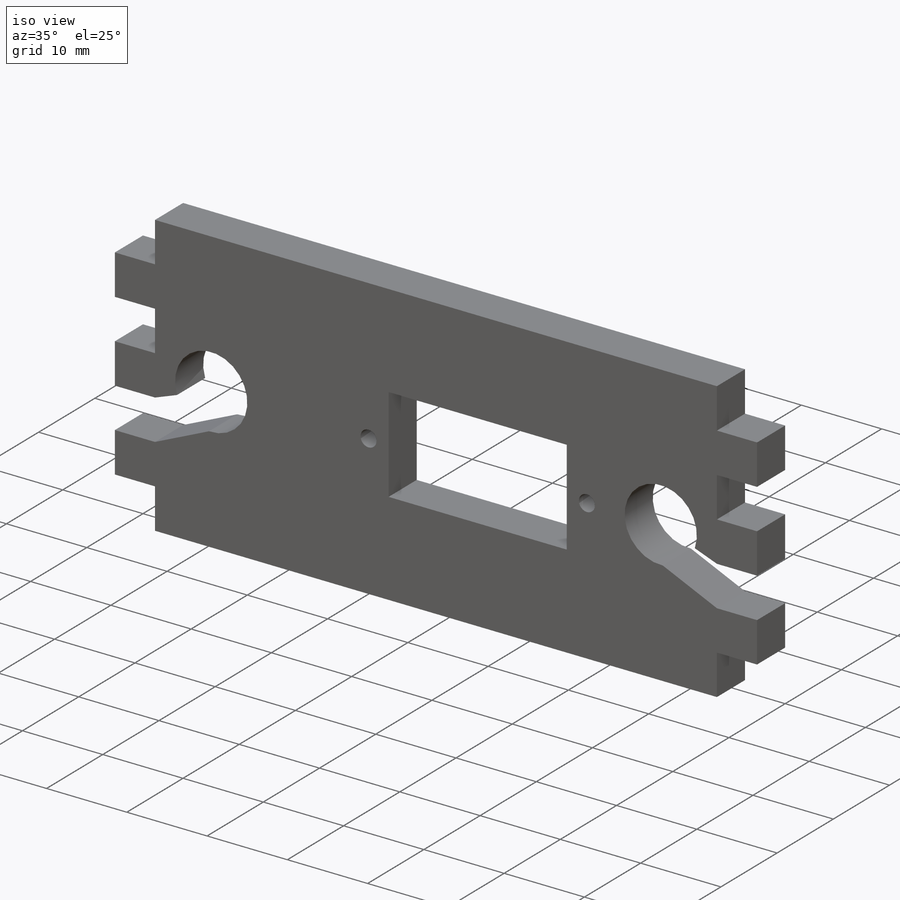
[diagram: iso view]
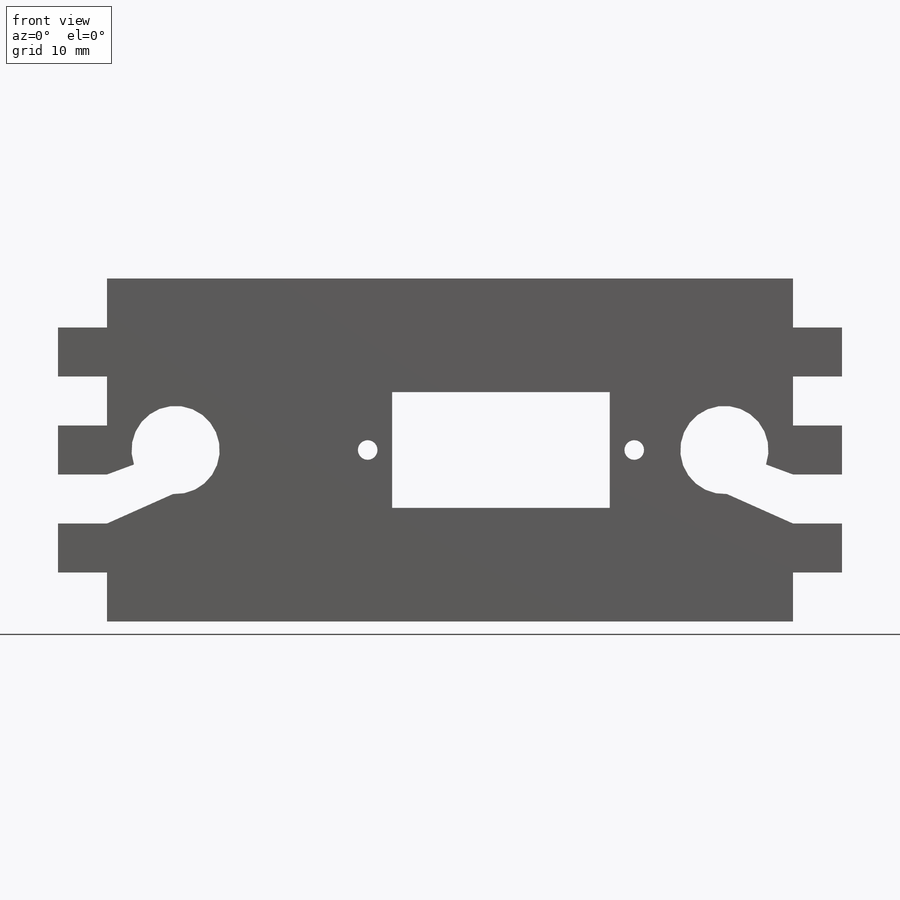
[diagram: front view]
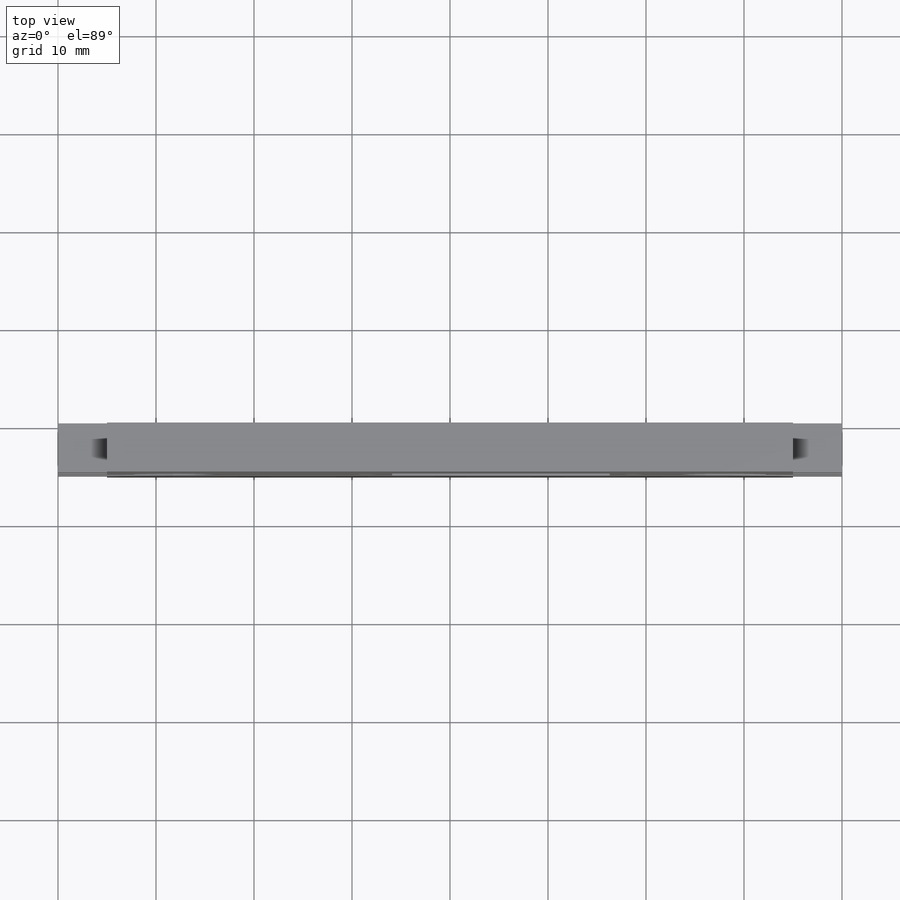
[diagram: top view]
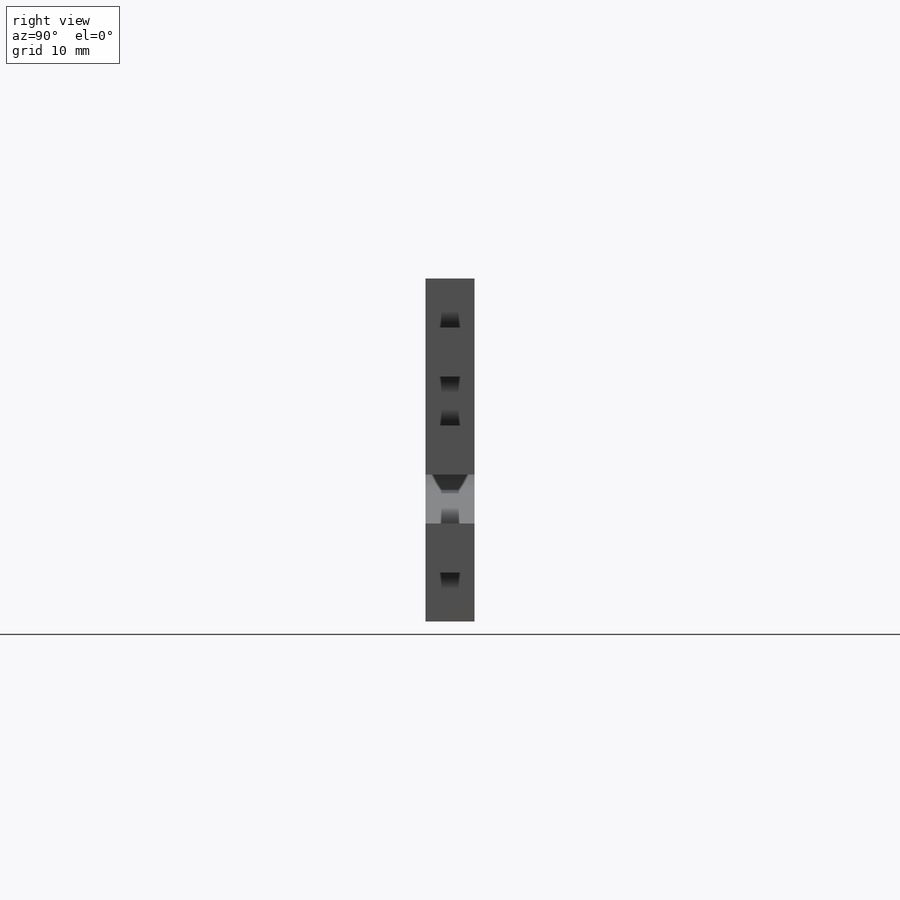
[diagram: right view]
SOLIDWORKS PART (.sldprt)
format: sldprt  version: not decoded by parser v0  size: 518,656 bytes
history: native  units: mm
features: sketch x7, cut_extrude x6, plane x3, pattern_linear x2, material x1, extrude x1, mirror x1 (+10 scaffold rows collapsed)
feature tree (31):
  scaffold x10  (default folders/planes/origin — collapsed)
  material  "Balsa"
  plane  "Plan de face"
  plane  "Plan de dessus"
  plane  "Plan de droite"
  sketch  "Esquisse1"  dims[c1.D8=~2.698143mm c1.D10=2.0mm c1.D1=80.0mm c1.D2=35.0mm c1.D3=40.0mm c1.D4=17.5mm c1.D5=22.0mm c1.D6=11.8mm c1.D7=5.9mm c2.D8=2.5mm c2.D9=5.9mm c2.D10=11.0mm]
  extrude  "Boss.-Extru.1"  Depth=5mm
  sketch  "Esquisse3"  dims[D1=5.0mm D2=5.0mm]
  cut_extrude  "Enlèv. mat.-Extru.1"  Depth=10mm
  pattern_linear  "Répétition linéaire1"  Count1=4 Count2=1 Spacing1=10mm Spacing2=10mm
  sketch  "Esquisse4"  dims[D1=5.0mm D2=5.0mm]
  cut_extrude  "Enlèv. mat.-Extru.2"  Depth=10mm
  pattern_linear  "Répétition linéaire2"  Count1=4 Count2=1 Spacing1=10mm Spacing2=10mm
  sketch  "Esquisse6"  dims[D1=11.8mm D2=22.2mm D3=5.9mm D4=5.9mm]
  cut_extrude  "Enlèv. mat.-Extru.5"  Depth=10mm
  sketch  "Esquisse7"  dims[D1=2.5mm D2=2.5mm]
  cut_extrude  "Enlèv. mat.-Extru.7"  Depth=10mm
  sketch  "Esquisse8"  dims[D3=9.0mm D1=17.5mm D2=12.0mm]
  cut_extrude  "Enlèv. mat.-Extru.8"  Depth=10mm
  sketch  "Esquisse9"  dims[c1.D1=5.0mm c1.D2=3.0mm c1.D3=~5.459649mm c1.D4=~3.49585mm c1.D5=~3.49585mm c2.D4=~3.49585mm c2.D5=~3.49585mm c3.D4=~3.49585mm c3.D5=~3.49585mm c4.D4=~3.49585mm c4.D5=~3.49585mm c5.D4=~3.49585mm c5.D5=~3.49585mm c6.D4=~3.49585mm c6.D5=~3.49585mm c7.D4=~3.49585mm c7.D5=~3.49585mm c8.D4=~3.49585mm c8.D5=~3.49585mm c9.D4=~3.49585mm c9.D5=~3.49585mm c10.D4=~3.49585mm c10.D5=~3.49585mm c11.D4=~3.49585mm c11.D5=~3.49585mm c12.D4=~3.49585mm c12.D5=~3.49585mm c13.D4=~3.49585mm c13.D5=~3.49585mm c13.D2=5.0mm c13.D1=2.75mm c14.D2=5.0mm]
  cut_extrude  "Enlèv. mat.-Extru.9"  Depth=10mm
  mirror  "Symétrie1"
decode coverage: 16 of 17 modeling features carry decoded parameters
note: ~ marks probable driven/reference dimensions
note: suppression state not decoded; provenance and decode notes live in map.json
